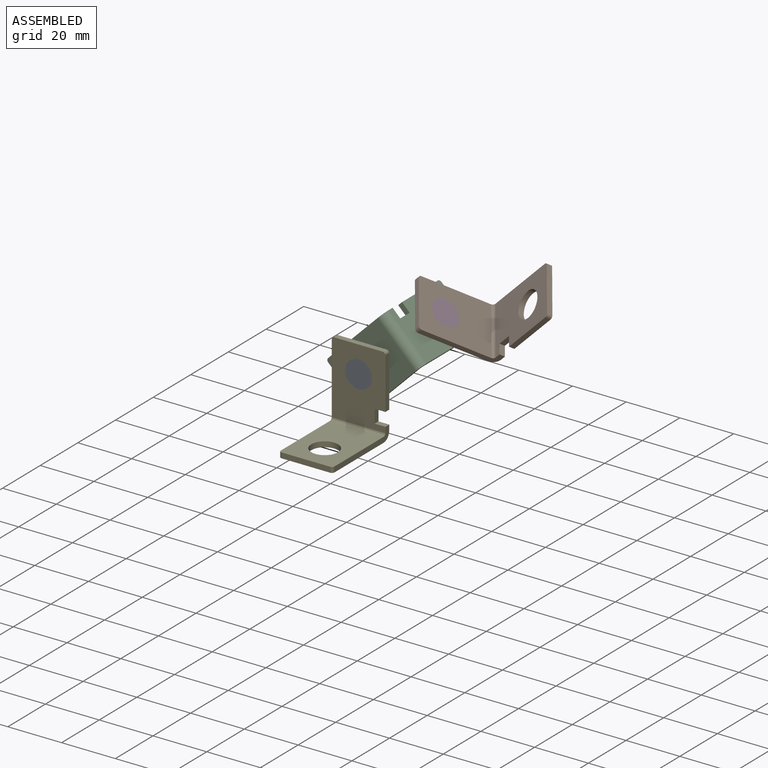
[diagram: assembled view]
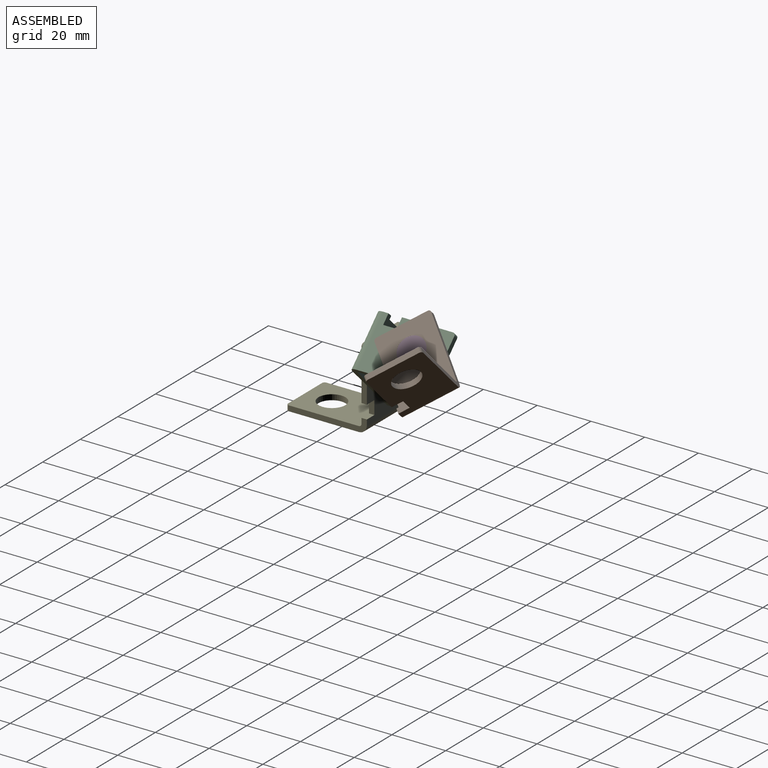
[diagram: assembled view, second angle]
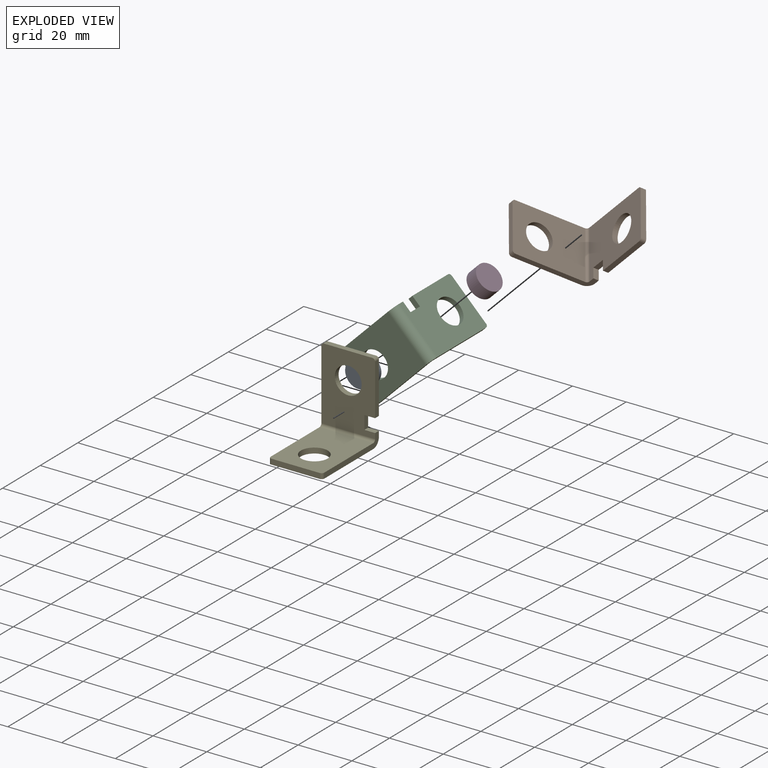
[diagram: exploded view]
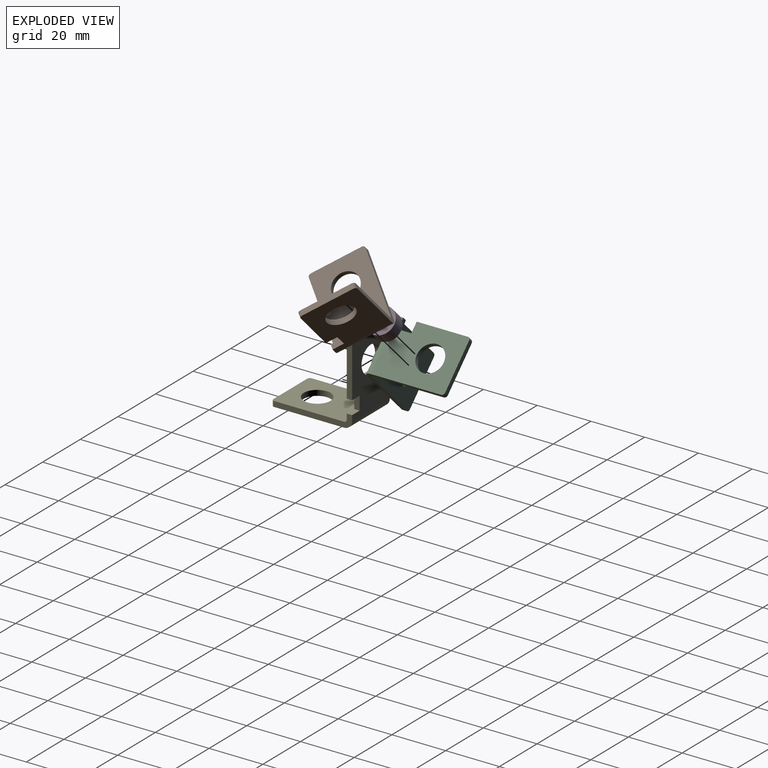
[diagram: exploded view, second angle]
ASSEMBLY  parts=5 mates=11
PART A: 3 faces, bbox 10x10x5 mm
  f0: cylinder r=5mm len=10mm, axis (0,0,-1), area 157.1mm2, adj f1,f2
  f1: plane 10x10mm, normal (0,0,1), area 78.5mm2, adj f0
  f2: plane 10x10mm, normal (0,0,-1), area 78.5mm2, adj f0
PART B: 20 faces, bbox 20x30x30 mm
  f0: plane 19x2mm, normal (1,0,0), area 38mm2, adj f1,f7,f12,f15
  f1: plane 27x20mm, normal (0,1,0), area 441mm2, adj f0,f2,f4,f8,f10,f11,f12,f13
  f2: plane 29x29mm, normal (-1,0,0), area 110.3mm2, adj f1,f5,f6,f7,f14,f16,f17,f19
  f3: plane 18x2mm, normal (0,-1,0), area 36mm2, adj f5,f6,f17,f18
  f4: plane 29x5mm, normal (1,0,0), area 62.3mm2, adj f1,f5,f6,f7,f11,f14,f18,f19
  f5: plane 27x20mm, normal (0,0,1), area 461mm2, adj f2,f3,f4,f9,f14,f17,f18
  f6: plane 27x20mm, normal (0,0,-1), area 461mm2, adj f2,f3,f4,f9,f17,f18,f19
  f7: plane 27x20mm, normal (0,-1,0), area 441mm2, adj f0,f2,f4,f8,f10,f11,f12,f13
  f8: plane 18x2mm, normal (0,0,1), area 36mm2, adj f1,f7,f15,f16
  f9: cylinder r=5mm len=10mm, axis (0,0,1), area 62.8mm2, adj f5,f6
  f10: cylinder r=5mm len=10mm, axis (0,-1,0), area 62.8mm2, adj f1,f7
  f11: plane 4x2mm, normal (0,0,1), area 8mm2, adj f1,f4,f7,f13
  f12: plane 4x2mm, normal (0,0,-1), area 8mm2, adj f0,f1,f7,f13
  f13: plane 5x2mm, normal (1,0,0), area 10mm2, adj f1,f7,f11,f12
  f14: cylinder r=1mm len=20mm, axis (1,0,0), area 31.4mm2, adj f2,f4,f5,f7
  f15: cylinder r=1mm len=2mm, axis (0,-1,0), area 3.1mm2, adj f0,f1,f7,f8
  f16: cylinder r=1mm len=2mm, axis (0,1,0), area 3.1mm2, adj f1,f2,f7,f8
  f17: cylinder r=1mm len=2mm, axis (0,0,1), area 3.1mm2, adj f2,f3,f5,f6
  f18: cylinder r=1mm len=2mm, axis (0,0,-1), area 3.1mm2, adj f3,f4,f5,f6
  f19: cylinder r=3mm len=20mm, axis (-1,0,0), area 94.2mm2, adj f1,f2,f4,f6
PART C: same geometry as B
PART D: same geometry as A
PART E: same geometry as B
PLACE A rot(axis=(-1,0,0),90deg) t=(-4.9,36.26,8.2)mm
PLACE B rot(axis=(-0.28,0.68,-0.68),62.8deg) t=(-0.05,59.26,33.05)mm
PLACE C rot(axis=(-0.28,-0.68,-0.68),148.6deg) t=(-4.9,39.26,-5.94)mm
PLACE D rot(axis=(0,1,0),45deg) t=(7.83,59.26,20.93)mm
PLACE E t=(-14.9,8.26,-11.8)mm
MATE cylindrical C.f10 <-> D.f0  axis (-0.71,0,-0.71) through (8.53,59.26,21.64)mm
MATE planar C.f5 <-> A.f0  axis (0,1,0) through (-2,41.26,11.11)mm
MATE parallel A.f0 <-> E.f7  axis (0,-1,0) through (-4.9,36.26,8.2)mm
MATE cylindrical A.f0 <-> E.f10  axis (0,-1,0) through (-4.9,38.76,8.2)mm
MATE cylindrical C.f10 <-> D.f0  axis (0.71,0,0.71) through (9.24,59.26,22.34)mm
MATE planar E.f7 <-> A.f0  axis (0,-1,0) through (-5.26,36.26,4.47)mm
MATE cylindrical B.f9 <-> D.f0  axis (0.71,0,0.71) through (11.36,59.26,24.47)mm
MATE planar B.f5 <-> D.f0  axis (0.71,0,0.71) through (13.42,62.17,22.41)mm
MATE planar C.f7 <-> D.f0  axis (-0.71,0,-0.71) through (7.83,69.26,20.93)mm
MATE parallel C.f5 <-> A.f0  axis (0,1,0) through (-2,41.26,11.11)mm
MATE cylindrical A.f0 <-> C.f9  axis (0,-1,0) through (-4.9,38.76,8.2)mm
